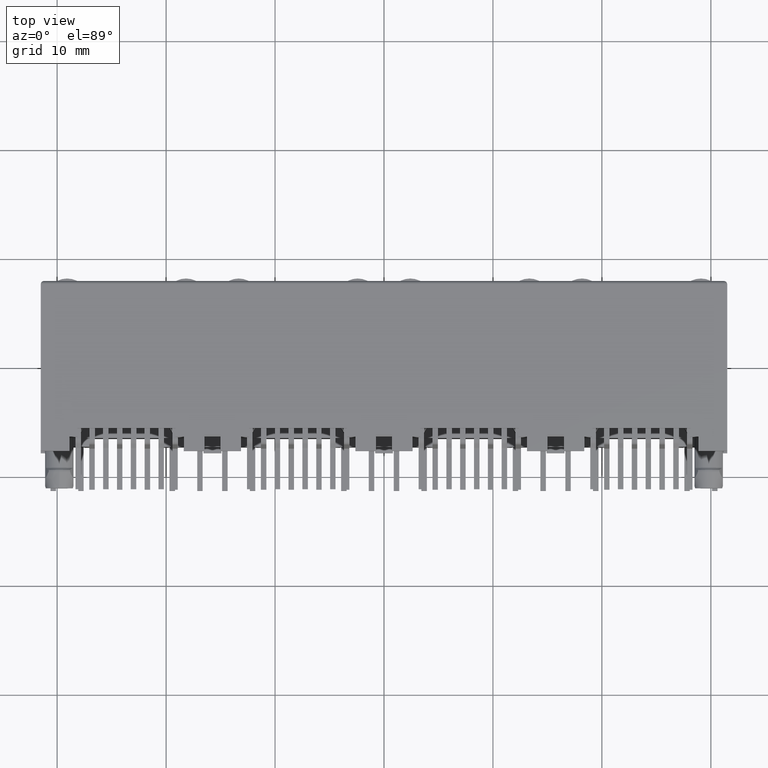
[diagram: clean part render]
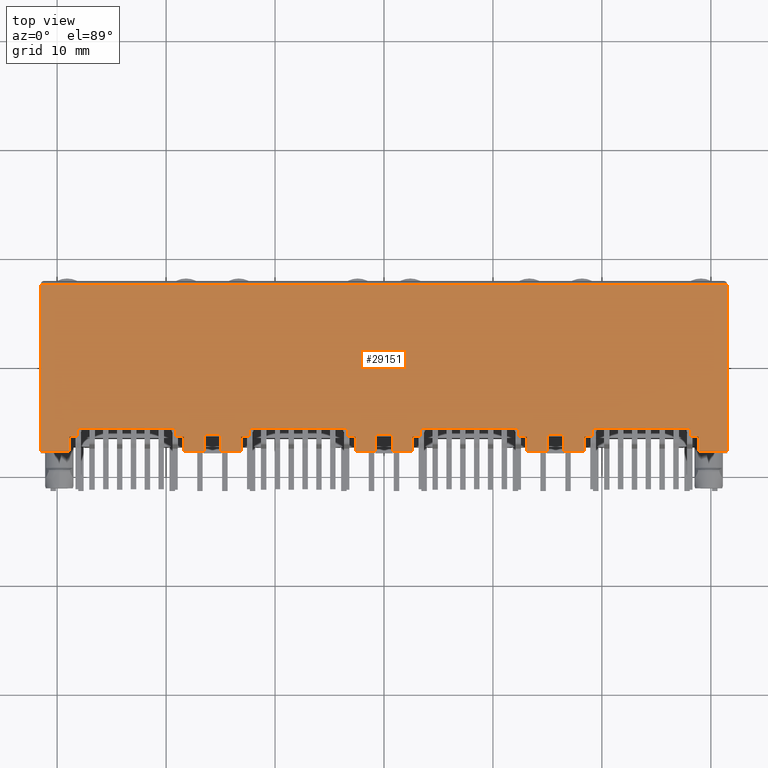
[diagram: same view with one face highlighted and labeled with its STEP entity id]
A machine part, top view. The second image highlights one B-rep face of the part: STEP entity #29151.
In plain terms, the highlighted planar face has unit normal (0, 0, 1).
Its self-contained STEP definition (entity closure, byte-faithful):
#408 = ORIENTED_EDGE ( 'NONE', *, *, #50921, .T. ) ;
#501 = VECTOR ( 'NONE', #39236, 1000.000000000000000 ) ;
#512 = CARTESIAN_POINT ( 'NONE',  ( 19.12500000000000000, -5.700000000000000200, 6.299999999999999800 ) ) ;
#630 = VECTOR ( 'NONE', #67161, 1000.000000000000000 ) ;
#689 = LINE ( 'NONE', #28458, #40504 ) ;
#986 = LINE ( 'NONE', #15931, #45043 ) ;
#1002 = CARTESIAN_POINT ( 'NONE',  ( -28.87500000000000000, 6.224999999999999600, 6.299999999999999800 ) ) ;
#1078 = ORIENTED_EDGE ( 'NONE', *, *, #9834, .F. ) ;
#1869 = VERTEX_POINT ( 'NONE', #47231 ) ;
#2114 = VECTOR ( 'NONE', #44371, 1000.000000000000000 ) ;
#2413 = CARTESIAN_POINT ( 'NONE',  ( 15.00000000000000000, -6.299999999999998000, 6.299999999999998000 ) ) ;
#2448 = VECTOR ( 'NONE', #54901, 1000.000000000000000 ) ;
#2465 = ORIENTED_EDGE ( 'NONE', *, *, #40518, .F. ) ;
#2492 = VECTOR ( 'NONE', #22530, 1000.000000000000000 ) ;
#2673 = ORIENTED_EDGE ( 'NONE', *, *, #57477, .F. ) ;
#2722 = CARTESIAN_POINT ( 'NONE',  ( 15.00000000000000000, 7.397999999999999700, 6.299999999999998900 ) ) ;
#3435 = LINE ( 'NONE', #5502, #42468 ) ;
#3716 = DIRECTION ( 'NONE',  ( -1.000000000000000000, 0.0000000000000000000, -0.0000000000000000000 ) ) ;
#3816 = EDGE_CURVE ( 'NONE', #44821, #12084, #15100, .T. ) ;
#3919 = LINE ( 'NONE', #31255, #19115 ) ;
#4300 = VERTEX_POINT ( 'NONE', #27532 ) ;
#4320 = EDGE_CURVE ( 'NONE', #27027, #29839, #24421, .T. ) ;
#4611 = LINE ( 'NONE', #69076, #42754 ) ;
#4896 = DIRECTION ( 'NONE',  ( 0.0000000000000000000, 1.000000000000000000, 0.0000000000000000000 ) ) ;
#4920 = VECTOR ( 'NONE', #9887, 1000.000000000000000 ) ;
#5047 = EDGE_CURVE ( 'NONE', #12084, #22391, #32000, .T. ) ;
#5221 = VERTEX_POINT ( 'NONE', #31435 ) ;
#5502 = CARTESIAN_POINT ( 'NONE',  ( 3.374999999999999600, -5.619440653744999500, 6.299999999999999800 ) ) ;
#5689 = LINE ( 'NONE', #60376, #20114 ) ;
#6110 = DIRECTION ( 'NONE',  ( -1.000000000000000000, -0.0000000000000000000, -0.0000000000000000000 ) ) ;
#6385 = VERTEX_POINT ( 'NONE', #41068 ) ;
#6570 = LINE ( 'NONE', #11541, #63346 ) ;
#6757 = ORIENTED_EDGE ( 'NONE', *, *, #60308, .F. ) ;
#6950 = VERTEX_POINT ( 'NONE', #8976 ) ;
#7122 = CARTESIAN_POINT ( 'NONE',  ( -3.374999999999999600, -6.500000000000000900, 6.299999999999999800 ) ) ;
#7343 = EDGE_CURVE ( 'NONE', #59952, #13374, #46218, .T. ) ;
#7590 = VERTEX_POINT ( 'NONE', #61163 ) ;
#7614 = CARTESIAN_POINT ( 'NONE',  ( 13.12500000000000000, -6.500000000000000900, 6.299999999999999800 ) ) ;
#7942 = CARTESIAN_POINT ( 'NONE',  ( 18.37500000000000000, -6.500000000000000900, 6.299999999999999800 ) ) ;
#8006 = CARTESIAN_POINT ( 'NONE',  ( 12.37499999999999800, -6.500000000000000900, 6.299999999999999800 ) ) ;
#8976 = CARTESIAN_POINT ( 'NONE',  ( 19.12500000000000000, -6.500000000000000900, 6.299999999999999800 ) ) ;
#9175 = VERTEX_POINT ( 'NONE', #42250 ) ;
#9254 = CARTESIAN_POINT ( 'NONE',  ( -0.7500000000000005600, -7.799999999999999800, 6.299999999999999800 ) ) ;
#9327 = LINE ( 'NONE', #2722, #12724 ) ;
#9834 = EDGE_CURVE ( 'NONE', #21891, #34287, #18287, .T. ) ;
#9887 = DIRECTION ( 'NONE',  ( -1.000000000000000000, -0.0000000000000000000, -0.0000000000000000000 ) ) ;
#10363 = CARTESIAN_POINT ( 'NONE',  ( -28.95555934624999100, -6.500000000000000900, 6.299999999999999800 ) ) ;
#10425 = VERTEX_POINT ( 'NONE', #14937 ) ;
#10517 = VERTEX_POINT ( 'NONE', #42471 ) ;
#10766 = VECTOR ( 'NONE', #54260, 1000.000000000000000 ) ;
#11249 = VERTEX_POINT ( 'NONE', #46753 ) ;
#11323 = VERTEX_POINT ( 'NONE', #9254 ) ;
#11363 = EDGE_CURVE ( 'NONE', #54307, #52838, #70153, .T. ) ;
#11457 = EDGE_CURVE ( 'NONE', #30233, #36724, #36797, .T. ) ;
#11541 = CARTESIAN_POINT ( 'NONE',  ( 28.87500000000000000, 6.224999999999999600, 6.299999999999999800 ) ) ;
#11639 = VECTOR ( 'NONE', #27292, 1000.000000000000000 ) ;
#11653 = CARTESIAN_POINT ( 'NONE',  ( 31.50000000000000000, -2.700000000000000200, 6.299999999999999800 ) ) ;
#11871 = CARTESIAN_POINT ( 'NONE',  ( 0.7500000000000000000, -7.799999999999999800, 6.299999999999999800 ) ) ;
#12084 = VERTEX_POINT ( 'NONE', #34123 ) ;
#12489 = VECTOR ( 'NONE', #53818, 1000.000000000000000 ) ;
#12632 = VERTEX_POINT ( 'NONE', #45929 ) ;
#12724 = VECTOR ( 'NONE', #41075, 1000.000000000000000 ) ;
#12951 = DIRECTION ( 'NONE',  ( 0.0000000000000000000, 1.000000000000000000, 0.0000000000000000000 ) ) ;
#13058 = VECTOR ( 'NONE', #59009, 1000.000000000000000 ) ;
#13291 = LINE ( 'NONE', #44631, #26881 ) ;
#13374 = VERTEX_POINT ( 'NONE', #7122 ) ;
#13601 = LINE ( 'NONE', #38896, #62794 ) ;
#14040 = CARTESIAN_POINT ( 'NONE',  ( 0.7500000000000000000, -8.097999999999999000, 6.299999999999998900 ) ) ;
#14201 = EDGE_LOOP ( 'NONE', ( #24064, #69349, #68908, #64461, #15089, #52182, #37403, #56317, #60318, #2673, #1078, #61466, #31898, #53605, #29968, #47978, #53961, #57718, #40949, #66716, #59751, #408, #2465, #25342, #26551, #49209, #47476, #50685, #51913, #51062, #62286, #21957, #25273, #63364, #26644, #27995, #55344, #34056, #40850, #49083, #42509, #49434, #6757, #57129, #47157, #40026, #26250, #44260 ) ) ;
#14295 = VECTOR ( 'NONE', #29092, 1000.000000000000000 ) ;
#14329 = DIRECTION ( 'NONE',  ( 1.000000000000000000, 0.0000000000000000000, 0.0000000000000000000 ) ) ;
#14569 = EDGE_CURVE ( 'NONE', #36724, #23307, #25510, .T. ) ;
#14692 = CARTESIAN_POINT ( 'NONE',  ( -31.50000000000000000, -7.800000000000000700, 6.299999999999999800 ) ) ;
#14857 = DIRECTION ( 'NONE',  ( 0.0000000000000000000, 1.000000000000000000, 0.0000000000000000000 ) ) ;
#14874 = EDGE_CURVE ( 'NONE', #21891, #30233, #62855, .T. ) ;
#14937 = CARTESIAN_POINT ( 'NONE',  ( 2.625000000000000000, -6.500000000000000900, 6.299999999999999800 ) ) ;
#15089 = ORIENTED_EDGE ( 'NONE', *, *, #64027, .F. ) ;
#15100 = LINE ( 'NONE', #36964, #15965 ) ;
#15106 = LINE ( 'NONE', #66036, #2448 ) ;
#15900 = LINE ( 'NONE', #36254, #39647 ) ;
#15931 = CARTESIAN_POINT ( 'NONE',  ( 13.04444065375000000, -7.799999999999999800, 6.299999999999999800 ) ) ;
#15965 = VECTOR ( 'NONE', #31771, 1000.000000000000000 ) ;
#16596 = CARTESIAN_POINT ( 'NONE',  ( 16.50000000000000000, -7.799999999999999800, 6.299999999999999800 ) ) ;
#17113 = VERTEX_POINT ( 'NONE', #61576 ) ;
#17203 = CARTESIAN_POINT ( 'NONE',  ( -14.91944065374999800, -6.299999999999998000, 6.299999999999999800 ) ) ;
#17637 = VECTOR ( 'NONE', #3716, 1000.000000000000000 ) ;
#18287 = LINE ( 'NONE', #17203, #501 ) ;
#18381 = LINE ( 'NONE', #37874, #10766 ) ;
#18383 = EDGE_CURVE ( 'NONE', #41004, #44753, #15106, .T. ) ;
#18555 = CARTESIAN_POINT ( 'NONE',  ( -31.50000000000000000, 7.500000000000000000, 6.299999999999999800 ) ) ;
#18875 = VERTEX_POINT ( 'NONE', #33338 ) ;
#19115 = VECTOR ( 'NONE', #53100, 1000.000000000000000 ) ;
#19234 = EDGE_CURVE ( 'NONE', #4300, #1869, #65112, .T. ) ;
#19653 = EDGE_CURVE ( 'NONE', #10425, #27027, #15900, .T. ) ;
#19684 = CARTESIAN_POINT ( 'NONE',  ( -12.37499999999999800, -5.619440653744999500, 6.299999999999999800 ) ) ;
#19720 = CARTESIAN_POINT ( 'NONE',  ( -3.455559346254999800, -6.500000000000000900, 6.299999999999999800 ) ) ;
#20114 = VECTOR ( 'NONE', #33110, 1000.000000000000000 ) ;
#20523 = DIRECTION ( 'NONE',  ( 0.0000000000000000000, 0.0000000000000000000, 1.000000000000000000 ) ) ;
#20959 = CARTESIAN_POINT ( 'NONE',  ( 31.50000000000000000, 2.399999999999999500, 6.299999999999999800 ) ) ;
#21330 = EDGE_CURVE ( 'NONE', #43923, #69812, #52474, .T. ) ;
#21888 = CARTESIAN_POINT ( 'NONE',  ( 31.50000000000000000, -7.800000000000000700, 6.299999999999999800 ) ) ;
#21891 = VERTEX_POINT ( 'NONE', #29869 ) ;
#21957 = ORIENTED_EDGE ( 'NONE', *, *, #46882, .F. ) ;
#22342 = CARTESIAN_POINT ( 'NONE',  ( -18.94500000000000000, -5.700000000000000200, 6.299999999999999800 ) ) ;
#22391 = VERTEX_POINT ( 'NONE', #57074 ) ;
#22530 = DIRECTION ( 'NONE',  ( 0.0000000000000000000, 1.000000000000000000, 0.0000000000000000000 ) ) ;
#22575 = EDGE_CURVE ( 'NONE', #63617, #18875, #67630, .T. ) ;
#22654 = VECTOR ( 'NONE', #4896, 1000.000000000000000 ) ;
#23307 = VERTEX_POINT ( 'NONE', #38549 ) ;
#23704 = CARTESIAN_POINT ( 'NONE',  ( 19.12500000000000000, -5.619440653744999500, 6.299999999999999800 ) ) ;
#24064 = ORIENTED_EDGE ( 'NONE', *, *, #18383, .F. ) ;
#24090 = CARTESIAN_POINT ( 'NONE',  ( -31.50000000000000000, -7.800000000000000700, 6.299999999999999800 ) ) ;
#24176 = CARTESIAN_POINT ( 'NONE',  ( -28.87500000000000000, -7.799999999999999800, 6.299999999999999800 ) ) ;
#24421 = LINE ( 'NONE', #53678, #37153 ) ;
#24713 = EDGE_CURVE ( 'NONE', #48712, #7590, #3919, .T. ) ;
#25126 = VECTOR ( 'NONE', #60135, 1000.000000000000000 ) ;
#25184 = VECTOR ( 'NONE', #39492, 1000.000000000000000 ) ;
#25190 = CARTESIAN_POINT ( 'NONE',  ( 16.58055934625000600, -6.299999999999998900, 6.299999999999998000 ) ) ;
#25273 = ORIENTED_EDGE ( 'NONE', *, *, #37924, .F. ) ;
#25342 = ORIENTED_EDGE ( 'NONE', *, *, #47300, .F. ) ;
#25510 = LINE ( 'NONE', #41418, #46754 ) ;
#25814 = CARTESIAN_POINT ( 'NONE',  ( -28.12499999999999600, -5.700000000000000200, 6.299999999999999800 ) ) ;
#26045 = CARTESIAN_POINT ( 'NONE',  ( -3.194999999999999800, -5.700000000000000200, 6.299999999999999800 ) ) ;
#26120 = VERTEX_POINT ( 'NONE', #62745 ) ;
#26250 = ORIENTED_EDGE ( 'NONE', *, *, #11363, .F. ) ;
#26551 = ORIENTED_EDGE ( 'NONE', *, *, #4320, .F. ) ;
#26644 = ORIENTED_EDGE ( 'NONE', *, *, #32749, .F. ) ;
#26696 = EDGE_CURVE ( 'NONE', #10517, #10425, #4611, .T. ) ;
#26881 = VECTOR ( 'NONE', #28948, 1000.000000000000000 ) ;
#27023 = EDGE_CURVE ( 'NONE', #59937, #41004, #63157, .T. ) ;
#27027 = VERTEX_POINT ( 'NONE', #44125 ) ;
#27292 = DIRECTION ( 'NONE',  ( 0.0000000000000000000, 1.000000000000000000, 0.0000000000000000000 ) ) ;
#27331 = EDGE_CURVE ( 'NONE', #28360, #17113, #28385, .T. ) ;
#27532 = CARTESIAN_POINT ( 'NONE',  ( -19.12500000000000000, -6.500000000000000900, 6.299999999999999800 ) ) ;
#27995 = ORIENTED_EDGE ( 'NONE', *, *, #21330, .F. ) ;
#28360 = VERTEX_POINT ( 'NONE', #37726 ) ;
#28385 = LINE ( 'NONE', #43373, #30085 ) ;
#28458 = CARTESIAN_POINT ( 'NONE',  ( -3.374999999999999600, -6.580559346254998900, 6.299999999999999800 ) ) ;
#28616 = LINE ( 'NONE', #10363, #4920 ) ;
#28786 = CARTESIAN_POINT ( 'NONE',  ( -18.37499999999999600, -7.799999999999999800, 6.299999999999999800 ) ) ;
#28948 = DIRECTION ( 'NONE',  ( -1.000000000000000000, -0.0000000000000000000, -0.0000000000000000000 ) ) ;
#28977 = CARTESIAN_POINT ( 'NONE',  ( -13.20555934625000600, -6.500000000000000900, 6.299999999999999800 ) ) ;
#29092 = DIRECTION ( 'NONE',  ( 0.0000000000000000000, 1.000000000000000000, 0.0000000000000000000 ) ) ;
#29151 = ADVANCED_FACE ( 'NONE', ( #52863 ), #30231, .T. ) ;
#29184 = DIRECTION ( 'NONE',  ( -1.000000000000000000, 0.0000000000000000000, 0.0000000000000000000 ) ) ;
#29839 = VERTEX_POINT ( 'NONE', #11871 ) ;
#29869 = CARTESIAN_POINT ( 'NONE',  ( -15.00000000000000000, -6.299999999999998000, 6.299999999999999800 ) ) ;
#29893 = VERTEX_POINT ( 'NONE', #7614 ) ;
#29968 = ORIENTED_EDGE ( 'NONE', *, *, #58958, .F. ) ;
#30085 = VECTOR ( 'NONE', #48857, 1000.000000000000000 ) ;
#30148 = DIRECTION ( 'NONE',  ( -1.000000000000000000, -0.0000000000000000000, -0.0000000000000000000 ) ) ;
#30231 = PLANE ( 'NONE',  #31523 ) ;
#30233 = VERTEX_POINT ( 'NONE', #64904 ) ;
#30419 = DIRECTION ( 'NONE',  ( -1.000000000000000000, 0.0000000000000000000, -0.0000000000000000000 ) ) ;
#30534 = VECTOR ( 'NONE', #52060, 1000.000000000000000 ) ;
#30542 = CARTESIAN_POINT ( 'NONE',  ( 16.41944065374999800, -7.799999999999999800, 6.299999999999999800 ) ) ;
#30773 = EDGE_CURVE ( 'NONE', #41247, #6385, #51001, .T. ) ;
#31193 = CARTESIAN_POINT ( 'NONE',  ( -18.37500000000000000, -8.075000000000001100, 6.299999999999999800 ) ) ;
#31255 = CARTESIAN_POINT ( 'NONE',  ( 18.37500000000000000, 6.224999999999999600, 6.299999999999999800 ) ) ;
#31435 = CARTESIAN_POINT ( 'NONE',  ( -16.50000000000000000, -7.799999999999999800, 6.299999999999999800 ) ) ;
#31523 = AXIS2_PLACEMENT_3D ( 'NONE', #42077, #20523, #14329 ) ;
#31771 = DIRECTION ( 'NONE',  ( 0.0000000000000000000, 1.000000000000000000, 0.0000000000000000000 ) ) ;
#31898 = ORIENTED_EDGE ( 'NONE', *, *, #11457, .T. ) ;
#32000 = LINE ( 'NONE', #39293, #43895 ) ;
#32652 = VERTEX_POINT ( 'NONE', #40372 ) ;
#32749 = EDGE_CURVE ( 'NONE', #69812, #44062, #68304, .T. ) ;
#33110 = DIRECTION ( 'NONE',  ( 1.000000000000000000, 0.0000000000000000000, 0.0000000000000000000 ) ) ;
#33154 = EDGE_CURVE ( 'NONE', #48548, #9175, #65717, .T. ) ;
#33338 = CARTESIAN_POINT ( 'NONE',  ( -18.37500000000000000, -6.500000000000000900, 6.299999999999999800 ) ) ;
#33441 = CARTESIAN_POINT ( 'NONE',  ( -0.7500000000000006700, -8.105999999999999900, 6.299999999999999800 ) ) ;
#33927 = CARTESIAN_POINT ( 'NONE',  ( 31.50000000000000000, 7.500000000000000000, 6.299999999999999800 ) ) ;
#34056 = ORIENTED_EDGE ( 'NONE', *, *, #24713, .F. ) ;
#34069 = DIRECTION ( 'NONE',  ( -0.0000000000000000000, 1.000000000000000000, -0.0000000000000000000 ) ) ;
#34123 = CARTESIAN_POINT ( 'NONE',  ( 12.37499999999999800, -5.700000000000000200, 6.299999999999999800 ) ) ;
#34287 = VERTEX_POINT ( 'NONE', #48714 ) ;
#34499 = LINE ( 'NONE', #34983, #48155 ) ;
#34983 = CARTESIAN_POINT ( 'NONE',  ( 13.12500000000000000, -8.075000000000001100, 6.299999999999999800 ) ) ;
#36134 = CARTESIAN_POINT ( 'NONE',  ( 0.8305593462549002400, -6.299999999999999800, 6.299999999999998000 ) ) ;
#36254 = CARTESIAN_POINT ( 'NONE',  ( 2.625000000000000000, 6.224999999999999600, 6.299999999999999800 ) ) ;
#36268 = CARTESIAN_POINT ( 'NONE',  ( -31.50000000000000000, 2.399999999999999500, 6.300000000000000700 ) ) ;
#36724 = VERTEX_POINT ( 'NONE', #65390 ) ;
#36797 = LINE ( 'NONE', #59452, #13058 ) ;
#36964 = CARTESIAN_POINT ( 'NONE',  ( 12.37499999999999800, -6.580559346254998900, 6.299999999999999800 ) ) ;
#37153 = VECTOR ( 'NONE', #42753, 1000.000000000000000 ) ;
#37374 = VECTOR ( 'NONE', #59628, 1000.000000000000000 ) ;
#37403 = ORIENTED_EDGE ( 'NONE', *, *, #69649, .F. ) ;
#37495 = CARTESIAN_POINT ( 'NONE',  ( 0.7500000000000000000, -6.299999999999998900, 6.299999999999998000 ) ) ;
#37726 = CARTESIAN_POINT ( 'NONE',  ( 31.50000000000000000, -7.800000000000000700, 6.299999999999999800 ) ) ;
#37874 = CARTESIAN_POINT ( 'NONE',  ( 19.20555934625000200, -6.500000000000000900, 6.299999999999999800 ) ) ;
#37924 = EDGE_CURVE ( 'NONE', #67036, #11249, #986, .T. ) ;
#38075 = CARTESIAN_POINT ( 'NONE',  ( -2.624999999999998700, -8.105999999999999900, 6.299999999999999800 ) ) ;
#38155 = EDGE_CURVE ( 'NONE', #22391, #10517, #3435, .T. ) ;
#38253 = EDGE_CURVE ( 'NONE', #44353, #59257, #13601, .T. ) ;
#38549 = CARTESIAN_POINT ( 'NONE',  ( -13.12500000000000000, -6.500000000000000900, 6.299999999999999800 ) ) ;
#38646 = B_SPLINE_CURVE_WITH_KNOTS ( 'NONE', 3,
 ( #64092, #20959, #11653, #21888 ),
 .UNSPECIFIED., .F., .F.,
 ( 4, 4 ),
 ( 0.0000000000000000000, 1.000000000000000000 ),
 .UNSPECIFIED. ) ;
#38896 = CARTESIAN_POINT ( 'NONE',  ( 28.30500000000000000, -5.700000000000000200, 6.299999999999999800 ) ) ;
#39236 = DIRECTION ( 'NONE',  ( -1.000000000000000000, 0.0000000000000000000, -0.0000000000000000000 ) ) ;
#39293 = CARTESIAN_POINT ( 'NONE',  ( 12.55499999999999800, -5.700000000000000200, 6.299999999999999800 ) ) ;
#39492 = DIRECTION ( 'NONE',  ( -1.000000000000000000, -0.0000000000000000000, -0.0000000000000000000 ) ) ;
#39647 = VECTOR ( 'NONE', #41715, 1000.000000000000000 ) ;
#40026 = ORIENTED_EDGE ( 'NONE', *, *, #63910, .F. ) ;
#40154 = CARTESIAN_POINT ( 'NONE',  ( 16.50000000000000000, -8.097999999999999000, 6.299999999999998900 ) ) ;
#40372 = CARTESIAN_POINT ( 'NONE',  ( -0.7500000000000002200, -6.299999999999998000, 6.299999999999998900 ) ) ;
#40414 = LINE ( 'NONE', #50194, #25184 ) ;
#40504 = VECTOR ( 'NONE', #43175, 1000.000000000000000 ) ;
#40518 = EDGE_CURVE ( 'NONE', #49649, #32652, #42265, .T. ) ;
#40725 = CARTESIAN_POINT ( 'NONE',  ( 15.00000000000000000, -7.799999999999999800, 6.299999999999999800 ) ) ;
#40850 = ORIENTED_EDGE ( 'NONE', *, *, #47968, .F. ) ;
#40949 = ORIENTED_EDGE ( 'NONE', *, *, #7343, .F. ) ;
#41004 = VERTEX_POINT ( 'NONE', #24176 ) ;
#41068 = CARTESIAN_POINT ( 'NONE',  ( -28.12499999999999600, -6.500000000000000900, 6.299999999999999800 ) ) ;
#41075 = DIRECTION ( 'NONE',  ( 0.0000000000000000000, -1.000000000000000000, 0.0000000000000000000 ) ) ;
#41240 = LINE ( 'NONE', #38075, #25126 ) ;
#41242 = EDGE_CURVE ( 'NONE', #26120, #48548, #42192, .T. ) ;
#41247 = VERTEX_POINT ( 'NONE', #25814 ) ;
#41253 = CARTESIAN_POINT ( 'NONE',  ( 28.95555934624999100, -6.500000000000000900, 6.299999999999999800 ) ) ;
#41418 = CARTESIAN_POINT ( 'NONE',  ( -13.12499999999999800, -8.105999999999999900, 6.299999999999999800 ) ) ;
#41652 = CARTESIAN_POINT ( 'NONE',  ( 28.12499999999999600, -5.700000000000000200, 6.299999999999999800 ) ) ;
#41715 = DIRECTION ( 'NONE',  ( 0.0000000000000000000, -1.000000000000000000, 0.0000000000000000000 ) ) ;
#42077 = CARTESIAN_POINT ( 'NONE',  ( -32.75999999999999800, -8.105999999999999900, 6.299999999999999800 ) ) ;
#42128 = VECTOR ( 'NONE', #45627, 1000.000000000000000 ) ;
#42192 = LINE ( 'NONE', #26045, #65955 ) ;
#42250 = CARTESIAN_POINT ( 'NONE',  ( -12.37499999999999800, -6.500000000000000900, 6.299999999999999800 ) ) ;
#42265 = LINE ( 'NONE', #36134, #17637 ) ;
#42468 = VECTOR ( 'NONE', #54111, 1000.000000000000000 ) ;
#42471 = CARTESIAN_POINT ( 'NONE',  ( 3.374999999999999600, -6.500000000000000900, 6.299999999999999800 ) ) ;
#42509 = ORIENTED_EDGE ( 'NONE', *, *, #38253, .F. ) ;
#42753 = DIRECTION ( 'NONE',  ( -1.000000000000000000, -0.0000000000000000000, -0.0000000000000000000 ) ) ;
#42754 = VECTOR ( 'NONE', #52485, 1000.000000000000000 ) ;
#42920 = VECTOR ( 'NONE', #46747, 1000.000000000000000 ) ;
#43026 = VECTOR ( 'NONE', #62104, 1000.000000000000000 ) ;
#43175 = DIRECTION ( 'NONE',  ( 0.0000000000000000000, 1.000000000000000000, 0.0000000000000000000 ) ) ;
#43373 = CARTESIAN_POINT ( 'NONE',  ( 28.79444065374999400, -7.799999999999999800, 6.299999999999999800 ) ) ;
#43564 = EDGE_CURVE ( 'NONE', #44062, #67036, #9327, .T. ) ;
#43837 = VECTOR ( 'NONE', #6110, 1000.000000000000000 ) ;
#43895 = VECTOR ( 'NONE', #56845, 1000.000000000000000 ) ;
#43923 = VERTEX_POINT ( 'NONE', #16596 ) ;
#43965 = CARTESIAN_POINT ( 'NONE',  ( 28.12499999999999600, -6.500000000000000900, 6.299999999999999800 ) ) ;
#44062 = VERTEX_POINT ( 'NONE', #2413 ) ;
#44125 = CARTESIAN_POINT ( 'NONE',  ( 2.625000000000000000, -7.799999999999999800, 6.299999999999999800 ) ) ;
#44260 = ORIENTED_EDGE ( 'NONE', *, *, #53022, .F. ) ;
#44353 = VERTEX_POINT ( 'NONE', #41652 ) ;
#44371 = DIRECTION ( 'NONE',  ( 0.0000000000000000000, -1.000000000000000000, 0.0000000000000000000 ) ) ;
#44592 = DIRECTION ( 'NONE',  ( -1.000000000000000000, 0.0000000000000000000, 0.0000000000000000000 ) ) ;
#44631 = CARTESIAN_POINT ( 'NONE',  ( -18.45555934625000200, -7.799999999999999800, 6.299999999999999800 ) ) ;
#44753 = VERTEX_POINT ( 'NONE', #24090 ) ;
#44821 = VERTEX_POINT ( 'NONE', #8006 ) ;
#45043 = VECTOR ( 'NONE', #64553, 1000.000000000000000 ) ;
#45627 = DIRECTION ( 'NONE',  ( 0.0000000000000000000, 1.000000000000000000, 0.0000000000000000000 ) ) ;
#45929 = CARTESIAN_POINT ( 'NONE',  ( -2.625000000000000000, -7.799999999999999800, 6.299999999999999800 ) ) ;
#46218 = LINE ( 'NONE', #19720, #58156 ) ;
#46541 = VECTOR ( 'NONE', #56072, 1000.000000000000000 ) ;
#46747 = DIRECTION ( 'NONE',  ( -1.000000000000000000, 0.0000000000000000000, 0.0000000000000000000 ) ) ;
#46753 = CARTESIAN_POINT ( 'NONE',  ( 13.12500000000000000, -7.799999999999999800, 6.299999999999999800 ) ) ;
#46754 = VECTOR ( 'NONE', #14857, 1000.000000000000000 ) ;
#46882 = EDGE_CURVE ( 'NONE', #11249, #29893, #34499, .T. ) ;
#47157 = ORIENTED_EDGE ( 'NONE', *, *, #27331, .F. ) ;
#47160 = DIRECTION ( 'NONE',  ( -1.000000000000000000, -0.0000000000000000000, -0.0000000000000000000 ) ) ;
#47196 = DIRECTION ( 'NONE',  ( 0.0000000000000000000, -1.000000000000000000, 0.0000000000000000000 ) ) ;
#47231 = CARTESIAN_POINT ( 'NONE',  ( -19.12500000000000000, -5.700000000000000200, 6.299999999999999800 ) ) ;
#47300 = EDGE_CURVE ( 'NONE', #29839, #49649, #56559, .T. ) ;
#47476 = ORIENTED_EDGE ( 'NONE', *, *, #26696, .F. ) ;
#47484 = VERTEX_POINT ( 'NONE', #58895 ) ;
#47745 = EDGE_CURVE ( 'NONE', #59257, #6950, #49847, .T. ) ;
#47968 = EDGE_CURVE ( 'NONE', #6950, #48712, #18381, .T. ) ;
#47978 = ORIENTED_EDGE ( 'NONE', *, *, #33154, .F. ) ;
#48060 = EDGE_CURVE ( 'NONE', #17113, #47484, #6570, .T. ) ;
#48155 = VECTOR ( 'NONE', #12951, 1000.000000000000000 ) ;
#48368 = CARTESIAN_POINT ( 'NONE',  ( -16.50000000000000000, 7.397999999999999700, 6.299999999999999800 ) ) ;
#48548 = VERTEX_POINT ( 'NONE', #64611 ) ;
#48712 = VERTEX_POINT ( 'NONE', #7942 ) ;
#48714 = CARTESIAN_POINT ( 'NONE',  ( -16.50000000000000000, -6.299999999999998000, 6.299999999999999800 ) ) ;
#48857 = DIRECTION ( 'NONE',  ( -1.000000000000000000, -0.0000000000000000000, -0.0000000000000000000 ) ) ;
#48929 = CARTESIAN_POINT ( 'NONE',  ( -19.12500000000000000, -6.580559346254998900, 6.299999999999999800 ) ) ;
#49083 = ORIENTED_EDGE ( 'NONE', *, *, #47745, .F. ) ;
#49209 = ORIENTED_EDGE ( 'NONE', *, *, #19653, .F. ) ;
#49434 = ORIENTED_EDGE ( 'NONE', *, *, #62446, .F. ) ;
#49649 = VERTEX_POINT ( 'NONE', #37495 ) ;
#49847 = LINE ( 'NONE', #23704, #43026 ) ;
#50194 = CARTESIAN_POINT ( 'NONE',  ( 12.29444065374999800, -6.500000000000000900, 6.299999999999999800 ) ) ;
#50685 = ORIENTED_EDGE ( 'NONE', *, *, #38155, .F. ) ;
#50921 = EDGE_CURVE ( 'NONE', #11323, #32652, #61810, .T. ) ;
#51001 = LINE ( 'NONE', #54196, #37374 ) ;
#51062 = ORIENTED_EDGE ( 'NONE', *, *, #3816, .F. ) ;
#51446 = B_SPLINE_CURVE_WITH_KNOTS ( 'NONE', 3,
 ( #14692, #63527, #36268, #69014 ),
 .UNSPECIFIED., .F., .F.,
 ( 4, 4 ),
 ( 0.0000000000000000000, 1.000000000000000000 ),
 .UNSPECIFIED. ) ;
#51913 = ORIENTED_EDGE ( 'NONE', *, *, #5047, .F. ) ;
#52060 = DIRECTION ( 'NONE',  ( -0.0000000000000000000, -1.000000000000000000, -0.0000000000000000000 ) ) ;
#52182 = ORIENTED_EDGE ( 'NONE', *, *, #19234, .F. ) ;
#52474 = LINE ( 'NONE', #40154, #46541 ) ;
#52485 = DIRECTION ( 'NONE',  ( -1.000000000000000000, -0.0000000000000000000, -0.0000000000000000000 ) ) ;
#52686 = CARTESIAN_POINT ( 'NONE',  ( -10.50000000000000200, 7.499999999999999100, 6.299999999999999800 ) ) ;
#52838 = VERTEX_POINT ( 'NONE', #33927 ) ;
#52863 = FACE_OUTER_BOUND ( 'NONE', #14201, .T. ) ;
#52919 = CARTESIAN_POINT ( 'NONE',  ( -31.50000000000000000, 7.500000000000000000, 6.299999999999999800 ) ) ;
#53022 = EDGE_CURVE ( 'NONE', #44753, #54307, #51446, .T. ) ;
#53100 = DIRECTION ( 'NONE',  ( 0.0000000000000000000, -1.000000000000000000, 0.0000000000000000000 ) ) ;
#53605 = ORIENTED_EDGE ( 'NONE', *, *, #14569, .T. ) ;
#53678 = CARTESIAN_POINT ( 'NONE',  ( 0.6694406537450999800, -7.799999999999999800, 6.299999999999999800 ) ) ;
#53818 = DIRECTION ( 'NONE',  ( 0.0000000000000000000, -1.000000000000000000, 0.0000000000000000000 ) ) ;
#53904 = VECTOR ( 'NONE', #30419, 1000.000000000000000 ) ;
#53961 = ORIENTED_EDGE ( 'NONE', *, *, #41242, .F. ) ;
#54088 = LINE ( 'NONE', #48368, #12489 ) ;
#54111 = DIRECTION ( 'NONE',  ( 0.0000000000000000000, -1.000000000000000000, 0.0000000000000000000 ) ) ;
#54196 = CARTESIAN_POINT ( 'NONE',  ( -28.12499999999999600, -5.619440653744999500, 6.299999999999999800 ) ) ;
#54260 = DIRECTION ( 'NONE',  ( -1.000000000000000000, 0.0000000000000000000, 0.0000000000000000000 ) ) ;
#54307 = VERTEX_POINT ( 'NONE', #18555 ) ;
#54901 = DIRECTION ( 'NONE',  ( -1.000000000000000000, -0.0000000000000000000, -0.0000000000000000000 ) ) ;
#55344 = ORIENTED_EDGE ( 'NONE', *, *, #69520, .F. ) ;
#55884 = CARTESIAN_POINT ( 'NONE',  ( 16.50000000000000000, -6.299999999999998000, 6.299999999999998000 ) ) ;
#56072 = DIRECTION ( 'NONE',  ( 0.0000000000000000000, 1.000000000000000000, 0.0000000000000000000 ) ) ;
#56317 = ORIENTED_EDGE ( 'NONE', *, *, #22575, .F. ) ;
#56407 = VECTOR ( 'NONE', #47196, 1000.000000000000000 ) ;
#56559 = LINE ( 'NONE', #14040, #42128 ) ;
#56634 = VECTOR ( 'NONE', #47160, 1000.000000000000000 ) ;
#56845 = DIRECTION ( 'NONE',  ( -1.000000000000000000, 0.0000000000000000000, 0.0000000000000000000 ) ) ;
#57071 = EDGE_CURVE ( 'NONE', #13374, #26120, #689, .T. ) ;
#57074 = CARTESIAN_POINT ( 'NONE',  ( 3.374999999999999600, -5.700000000000000200, 6.299999999999999800 ) ) ;
#57129 = ORIENTED_EDGE ( 'NONE', *, *, #48060, .F. ) ;
#57350 = LINE ( 'NONE', #41253, #42920 ) ;
#57477 = EDGE_CURVE ( 'NONE', #34287, #5221, #54088, .T. ) ;
#57718 = ORIENTED_EDGE ( 'NONE', *, *, #57071, .F. ) ;
#58039 = VERTEX_POINT ( 'NONE', #43965 ) ;
#58156 = VECTOR ( 'NONE', #30148, 1000.000000000000000 ) ;
#58231 = EDGE_CURVE ( 'NONE', #6385, #59937, #28616, .T. ) ;
#58370 = LINE ( 'NONE', #30542, #56634 ) ;
#58895 = CARTESIAN_POINT ( 'NONE',  ( 28.87500000000000000, -6.500000000000000900, 6.299999999999999800 ) ) ;
#58958 = EDGE_CURVE ( 'NONE', #9175, #23307, #61671, .T. ) ;
#59009 = DIRECTION ( 'NONE',  ( 1.000000000000000000, 0.0000000000000000000, 0.0000000000000000000 ) ) ;
#59257 = VERTEX_POINT ( 'NONE', #512 ) ;
#59452 = CARTESIAN_POINT ( 'NONE',  ( -32.75999999999999800, -7.799999999999999800, 6.299999999999999800 ) ) ;
#59467 = CARTESIAN_POINT ( 'NONE',  ( -19.20555934625000200, -6.500000000000000900, 6.299999999999999800 ) ) ;
#59628 = DIRECTION ( 'NONE',  ( 0.0000000000000000000, -1.000000000000000000, 0.0000000000000000000 ) ) ;
#59751 = ORIENTED_EDGE ( 'NONE', *, *, #64533, .T. ) ;
#59937 = VERTEX_POINT ( 'NONE', #64329 ) ;
#59952 = VERTEX_POINT ( 'NONE', #70043 ) ;
#59968 = LINE ( 'NONE', #59467, #43837 ) ;
#59987 = LINE ( 'NONE', #22342, #60861 ) ;
#60135 = DIRECTION ( 'NONE',  ( -0.0000000000000000000, -1.000000000000000000, -0.0000000000000000000 ) ) ;
#60308 = EDGE_CURVE ( 'NONE', #47484, #58039, #57350, .T. ) ;
#60318 = ORIENTED_EDGE ( 'NONE', *, *, #64109, .F. ) ;
#60376 = CARTESIAN_POINT ( 'NONE',  ( -32.75999999999999800, -7.799999999999999800, 6.299999999999999800 ) ) ;
#60861 = VECTOR ( 'NONE', #29184, 1000.000000000000000 ) ;
#61163 = CARTESIAN_POINT ( 'NONE',  ( 18.37500000000000000, -7.799999999999999800, 6.299999999999999800 ) ) ;
#61466 = ORIENTED_EDGE ( 'NONE', *, *, #14874, .T. ) ;
#61576 = CARTESIAN_POINT ( 'NONE',  ( 28.87500000000000000, -7.799999999999999800, 6.299999999999999800 ) ) ;
#61671 = LINE ( 'NONE', #28977, #630 ) ;
#61810 = LINE ( 'NONE', #33441, #2492 ) ;
#62104 = DIRECTION ( 'NONE',  ( 0.0000000000000000000, -1.000000000000000000, 0.0000000000000000000 ) ) ;
#62220 = CARTESIAN_POINT ( 'NONE',  ( -15.00000000000000000, -8.105999999999999900, 6.299999999999999800 ) ) ;
#62286 = ORIENTED_EDGE ( 'NONE', *, *, #69841, .F. ) ;
#62446 = EDGE_CURVE ( 'NONE', #58039, #44353, #66898, .T. ) ;
#62745 = CARTESIAN_POINT ( 'NONE',  ( -3.374999999999999600, -5.700000000000000200, 6.299999999999999800 ) ) ;
#62794 = VECTOR ( 'NONE', #44592, 1000.000000000000000 ) ;
#62855 = LINE ( 'NONE', #62220, #30534 ) ;
#63157 = LINE ( 'NONE', #1002, #2114 ) ;
#63312 = CARTESIAN_POINT ( 'NONE',  ( 10.50000000000000200, 7.499999999999999100, 6.299999999999999800 ) ) ;
#63346 = VECTOR ( 'NONE', #34069, 1000.000000000000000 ) ;
#63364 = ORIENTED_EDGE ( 'NONE', *, *, #43564, .F. ) ;
#63527 = CARTESIAN_POINT ( 'NONE',  ( -31.50000000000000000, -2.700000000000001100, 6.300000000000000700 ) ) ;
#63617 = VERTEX_POINT ( 'NONE', #28786 ) ;
#63910 = EDGE_CURVE ( 'NONE', #52838, #28360, #38646, .T. ) ;
#63979 = DIRECTION ( 'NONE',  ( -1.000000000000000000, 0.0000000000000000000, 0.0000000000000000000 ) ) ;
#64027 = EDGE_CURVE ( 'NONE', #1869, #41247, #59987, .T. ) ;
#64031 = CARTESIAN_POINT ( 'NONE',  ( 31.50000000000000000, 7.500000000000000000, 6.299999999999999800 ) ) ;
#64092 = CARTESIAN_POINT ( 'NONE',  ( 31.50000000000000000, 7.500000000000000000, 6.299999999999999800 ) ) ;
#64109 = EDGE_CURVE ( 'NONE', #5221, #63617, #13291, .T. ) ;
#64329 = CARTESIAN_POINT ( 'NONE',  ( -28.87500000000000400, -6.500000000000000900, 6.299999999999999800 ) ) ;
#64461 = ORIENTED_EDGE ( 'NONE', *, *, #30773, .F. ) ;
#64533 = EDGE_CURVE ( 'NONE', #12632, #11323, #5689, .T. ) ;
#64553 = DIRECTION ( 'NONE',  ( -1.000000000000000000, -0.0000000000000000000, -0.0000000000000000000 ) ) ;
#64611 = CARTESIAN_POINT ( 'NONE',  ( -12.37499999999999800, -5.700000000000000200, 6.299999999999999800 ) ) ;
#64629 = EDGE_CURVE ( 'NONE', #59952, #12632, #41240, .T. ) ;
#64904 = CARTESIAN_POINT ( 'NONE',  ( -15.00000000000000000, -7.799999999999999800, 6.299999999999999800 ) ) ;
#65112 = LINE ( 'NONE', #48929, #11639 ) ;
#65390 = CARTESIAN_POINT ( 'NONE',  ( -13.12499999999999800, -7.799999999999999800, 6.299999999999999800 ) ) ;
#65717 = LINE ( 'NONE', #19684, #56407 ) ;
#65955 = VECTOR ( 'NONE', #63979, 1000.000000000000000 ) ;
#66036 = CARTESIAN_POINT ( 'NONE',  ( -31.58055934624999500, -7.799999999999999800, 6.299999999999999800 ) ) ;
#66716 = ORIENTED_EDGE ( 'NONE', *, *, #64629, .T. ) ;
#66801 = CARTESIAN_POINT ( 'NONE',  ( 28.12499999999999600, -6.580559346254998900, 6.299999999999999800 ) ) ;
#66898 = LINE ( 'NONE', #66801, #14295 ) ;
#67036 = VERTEX_POINT ( 'NONE', #40725 ) ;
#67161 = DIRECTION ( 'NONE',  ( -1.000000000000000000, -0.0000000000000000000, -0.0000000000000000000 ) ) ;
#67630 = LINE ( 'NONE', #31193, #22654 ) ;
#68304 = LINE ( 'NONE', #25190, #53904 ) ;
#68908 = ORIENTED_EDGE ( 'NONE', *, *, #58231, .F. ) ;
#69014 = CARTESIAN_POINT ( 'NONE',  ( -31.50000000000000000, 7.500000000000000000, 6.299999999999999800 ) ) ;
#69076 = CARTESIAN_POINT ( 'NONE',  ( 2.544440653744999700, -6.500000000000000900, 6.299999999999999800 ) ) ;
#69349 = ORIENTED_EDGE ( 'NONE', *, *, #27023, .F. ) ;
#69520 = EDGE_CURVE ( 'NONE', #7590, #43923, #58370, .T. ) ;
#69649 = EDGE_CURVE ( 'NONE', #18875, #4300, #59968, .T. ) ;
#69812 = VERTEX_POINT ( 'NONE', #55884 ) ;
#69841 = EDGE_CURVE ( 'NONE', #29893, #44821, #40414, .T. ) ;
#70043 = CARTESIAN_POINT ( 'NONE',  ( -2.624999999999999100, -6.500000000000000900, 6.299999999999999800 ) ) ;
#70153 = B_SPLINE_CURVE_WITH_KNOTS ( 'NONE', 3,
 ( #52919, #52686, #63312, #64031 ),
 .UNSPECIFIED., .F., .F.,
 ( 4, 4 ),
 ( 0.0000000000000000000, 1.000000000000000000 ),
 .UNSPECIFIED. ) ;